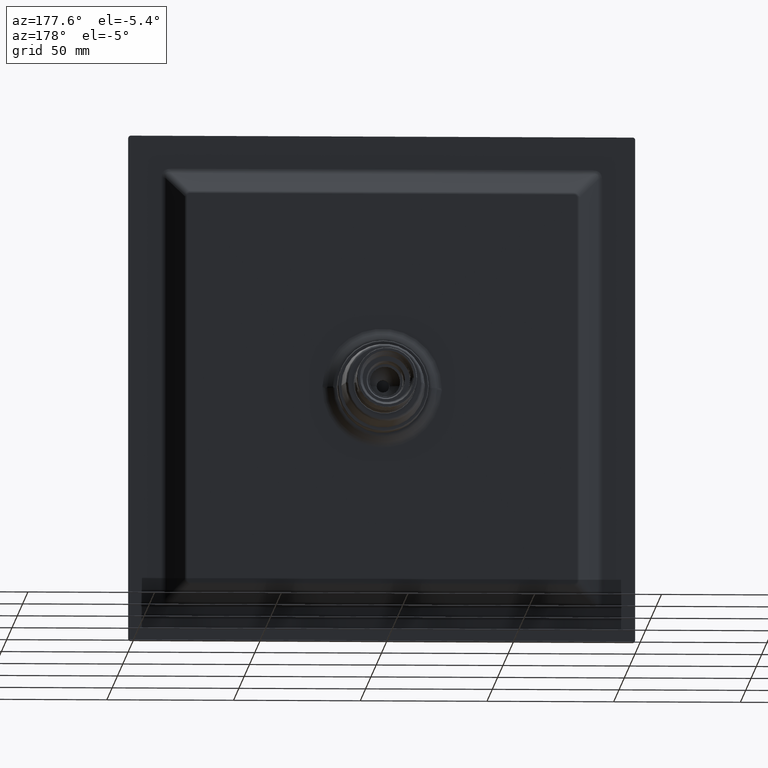
[diagram: clean part render]
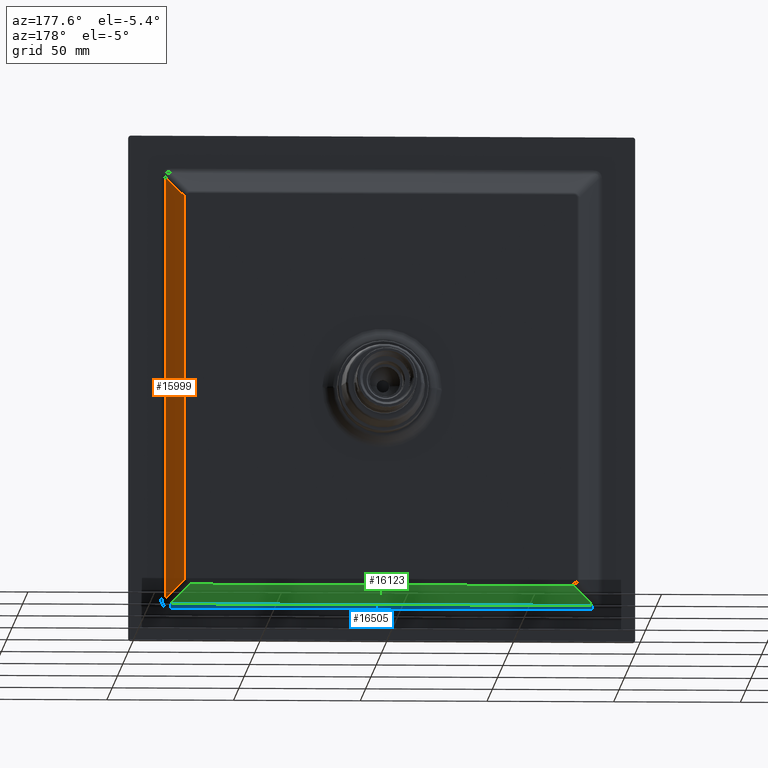
[diagram: same view with three faces highlighted in distinct colors, each labeled with its STEP entity id]
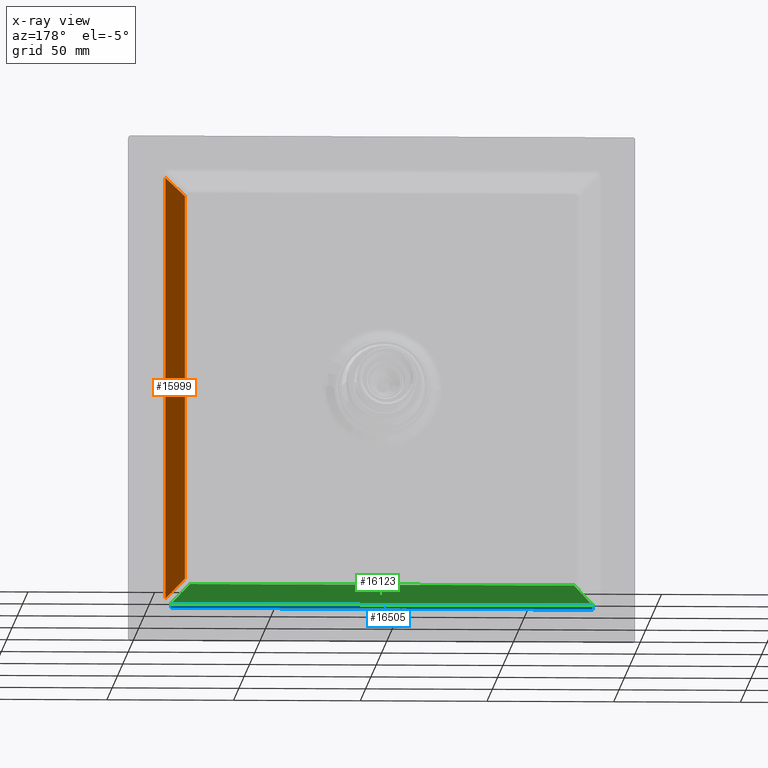
[diagram: x-ray of the same camera — body ghosted, the three highlighted faces saturated]
A machine part, auxiliary view with three faces highlighted in distinct colors.
The next image is the same camera in x-ray (body ghosted, the three faces saturated) — at least one of them is partly hidden behind the body in this view.
Their STEP definitions:

[orange] entity #15999 — the highlighted planar face has unit normal (-0.4183, -0.9083, 0).
#13833=CARTESIAN_POINT('',(7.783668448504E1,3.816579611434E0,7.574497345556E1));
#13863=DIRECTION('',(6.221956015247E-10,1.046034447701E-9,1.E0));
#13864=VECTOR('',#13863,1.514899470056E2);
#13865=CARTESIAN_POINT('',(7.783668439078E1,3.816579452970E0,
-7.574497355004E1));
#13866=LINE('',#13865,#13864);
#13877=DIRECTION('',(-6.723480505824E-1,3.096713901237E-1,-6.723479225943E-1));
#13878=VECTOR('',#13877,1.113998653608E1);
#13879=CARTESIAN_POINT('',(8.532663271609E1,3.668444948456E-1,
8.323492026082E1));
#13880=LINE('',#13879,#13878);
#13884=DIRECTION('',(6.723479438796E-1,-3.096714720851E-1,-6.723479915472E-1));
#13885=VECTOR('',#13884,1.113998816526E1);
#13886=CARTESIAN_POINT('',(7.783668439078E1,3.816579452970E0,
-7.574497355004E1));
#13887=LINE('',#13886,#13885);
#14121=DIRECTION('',(-1.126654223028E-9,-9.467305086684E-9,-1.E0));
#14122=VECTOR('',#14121,1.664698424796E2);
#14123=CARTESIAN_POINT('',(8.532663271609E1,3.668444948456E-1,
8.323492026082E1));
#14124=LINE('',#14123,#14122);
#15487=VERTEX_POINT('',#13833);
#15488=CARTESIAN_POINT('',(8.532663271609E1,3.668444948456E-1,
8.323492026082E1));
#15489=VERTEX_POINT('',#15488);
#15490=CARTESIAN_POINT('',(7.783668439078E1,3.816579452970E0,
-7.574497355004E1));
#15491=VERTEX_POINT('',#15490);
#15492=CARTESIAN_POINT('',(8.532663252854E1,3.668429188248E-1,
-8.323492221881E1));
#15493=VERTEX_POINT('',#15492);
#15986=CARTESIAN_POINT('',(8.532663163471E1,3.668418264480E-1,1.E2));
#15987=DIRECTION('',(-4.183420913224E-1,-9.082895433880E-1,0.E0));
#15988=DIRECTION('',(-9.082895433880E-1,4.183420913224E-1,0.E0));
#15989=AXIS2_PLACEMENT_3D('',#15986,#15987,#15988);
#15990=PLANE('',#15989);
#15991=ORIENTED_EDGE('',*,*,#15884,.T.);
#15992=ORIENTED_EDGE('',*,*,#15977,.F.);
#15994=ORIENTED_EDGE('',*,*,#15993,.T.);
#15996=ORIENTED_EDGE('',*,*,#15995,.F.);
#15997=EDGE_LOOP('',(#15991,#15992,#15994,#15996));
#15998=FACE_OUTER_BOUND('',#15997,.F.);
#15999=ADVANCED_FACE('',(#15998),#15990,.F.);
#15884=EDGE_CURVE('',#15489,#15487,#13880,.T.);
#15977=EDGE_CURVE('',#15491,#15487,#13866,.T.);
#15993=EDGE_CURVE('',#15491,#15493,#13887,.T.);
#15995=EDGE_CURVE('',#15489,#15493,#14124,.T.);

[blue] entity #16505 — the highlighted cylindrical surface (edge-blend (fillet) strip) has radius 4 mm, axis along (-1, 0, 0).
#14023=CARTESIAN_POINT('',(-8.323492048601E1,4.E0,-8.7E1));
#14024=DIRECTION('',(-1.E0,0.E0,0.E0));
#14025=DIRECTION('',(0.E0,-1.E0,9.022471658682E-11));
#14026=AXIS2_PLACEMENT_3D('',#14023,#14024,#14025);
#14143=CARTESIAN_POINT('',(8.323491934434E1,4.E0,-8.7E1));
#14144=DIRECTION('',(-1.E0,0.E0,0.E0));
#14145=DIRECTION('',(0.E0,-1.E0,9.022471658682E-11));
#14146=AXIS2_PLACEMENT_3D('',#14143,#14144,#14145);
#14151=DIRECTION('',(-1.E0,-9.467305130033E-9,1.126654137662E-9));
#14152=VECTOR('',#14151,1.664698424796E2);
#14153=CARTESIAN_POINT('',(8.323492026082E1,3.668444948456E-1,
-8.532663271609E1));
#14154=LINE('',#14153,#14152);
#14158=DIRECTION('',(1.E0,-2.874297793467E-8,-3.041050733607E-11));
#14159=VECTOR('',#14158,1.664698387052E2);
#14160=CARTESIAN_POINT('',(-8.323491875259E1,-1.339928486265E-6,
-8.699999999236E1));
#14161=LINE('',#14160,#14159);
#14261=CARTESIAN_POINT('',(-8.323491875259E1,-1.339928486265E-6,
-8.699999999236E1));
#15495=CARTESIAN_POINT('',(8.323492026082E1,3.668444948456E-1,
-8.532663271609E1));
#15496=VERTEX_POINT('',#15495);
#15499=CARTESIAN_POINT('',(-8.323492221881E1,3.668429188248E-1,
-8.532663252854E1));
#15500=VERTEX_POINT('',#15499);
#15503=VERTEX_POINT('',#14261);
#15514=CARTESIAN_POINT('',(8.323491934434E1,0.E0,-8.699999999964E1));
#15515=VERTEX_POINT('',#15514);
#16493=CARTESIAN_POINT('',(1.E2,4.E0,-8.7E1));
#16494=DIRECTION('',(-1.E0,0.E0,0.E0));
#16495=DIRECTION('',(0.E0,0.E0,1.E0));
#16496=AXIS2_PLACEMENT_3D('',#16493,#16494,#16495);
#16497=CYLINDRICAL_SURFACE('',#16496,4.E0);
#16498=ORIENTED_EDGE('',*,*,#16484,.T.);
#16499=ORIENTED_EDGE('',*,*,#16119,.T.);
#16500=ORIENTED_EDGE('',*,*,#16271,.F.);
#16502=ORIENTED_EDGE('',*,*,#16501,.T.);
#16503=EDGE_LOOP('',(#16498,#16499,#16500,#16502));
#16504=FACE_OUTER_BOUND('',#16503,.F.);
#16505=ADVANCED_FACE('',(#16504),#16497,.F.);
#14027=CIRCLE('',#14026,4.E0);
#14147=CIRCLE('',#14146,4.E0);
#16119=EDGE_CURVE('',#15496,#15500,#14154,.T.);
#16271=EDGE_CURVE('',#15503,#15500,#14027,.T.);
#16484=EDGE_CURVE('',#15515,#15496,#14147,.T.);
#16501=EDGE_CURVE('',#15503,#15515,#14161,.T.);

[green] entity #16123 — the highlighted planar face has unit normal (0, -0.9083, 0.4183).
#13929=CARTESIAN_POINT('',(7.574497345556E1,3.816579611434E0,
-7.783668448504E1));
#13943=DIRECTION('',(1.E0,1.046034482879E-9,-6.221956015247E-10));
#13944=VECTOR('',#13943,1.514899470056E2);
#13945=CARTESIAN_POINT('',(-7.574497355004E1,3.816579452970E0,
-7.783668439078E1));
#13946=LINE('',#13945,#13944);
#13957=DIRECTION('',(-6.723479225943E-1,3.096713901237E-1,6.723480505824E-1));
#13958=VECTOR('',#13957,1.113998653608E1);
#13959=CARTESIAN_POINT('',(8.323492026082E1,3.668444948456E-1,
-8.532663271609E1));
#13960=LINE('',#13959,#13958);
#13964=DIRECTION('',(-6.723479915472E-1,-3.096714720851E-1,-6.723479438796E-1));
#13965=VECTOR('',#13964,1.113998816526E1);
#13966=CARTESIAN_POINT('',(-7.574497355004E1,3.816579452970E0,
-7.783668439078E1));
#13967=LINE('',#13966,#13965);
#14151=DIRECTION('',(-1.E0,-9.467305130033E-9,1.126654137662E-9));
#14152=VECTOR('',#14151,1.664698424796E2);
#14153=CARTESIAN_POINT('',(8.323492026082E1,3.668444948456E-1,
-8.532663271609E1));
#14154=LINE('',#14153,#14152);
#15494=VERTEX_POINT('',#13929);
#15495=CARTESIAN_POINT('',(8.323492026082E1,3.668444948456E-1,
-8.532663271609E1));
#15496=VERTEX_POINT('',#15495);
#15497=CARTESIAN_POINT('',(-7.574497355004E1,3.816579452970E0,
-7.783668439078E1));
#15498=VERTEX_POINT('',#15497);
#15499=CARTESIAN_POINT('',(-8.323492221881E1,3.668429188248E-1,
-8.532663252854E1));
#15500=VERTEX_POINT('',#15499);
#16110=CARTESIAN_POINT('',(1.E2,3.668418264480E-1,-8.532663163471E1));
#16111=DIRECTION('',(0.E0,-9.082895433880E-1,4.183420913224E-1));
#16112=DIRECTION('',(0.E0,4.183420913224E-1,9.082895433880E-1));
#16113=AXIS2_PLACEMENT_3D('',#16110,#16111,#16112);
#16114=PLANE('',#16113);
#16115=ORIENTED_EDGE('',*,*,#16008,.T.);
#16116=ORIENTED_EDGE('',*,*,#16101,.F.);
#16118=ORIENTED_EDGE('',*,*,#16117,.T.);
#16120=ORIENTED_EDGE('',*,*,#16119,.F.);
#16121=EDGE_LOOP('',(#16115,#16116,#16118,#16120));
#16122=FACE_OUTER_BOUND('',#16121,.F.);
#16123=ADVANCED_FACE('',(#16122),#16114,.F.);
#16008=EDGE_CURVE('',#15496,#15494,#13960,.T.);
#16101=EDGE_CURVE('',#15498,#15494,#13946,.T.);
#16117=EDGE_CURVE('',#15498,#15500,#13967,.T.);
#16119=EDGE_CURVE('',#15496,#15500,#14154,.T.);